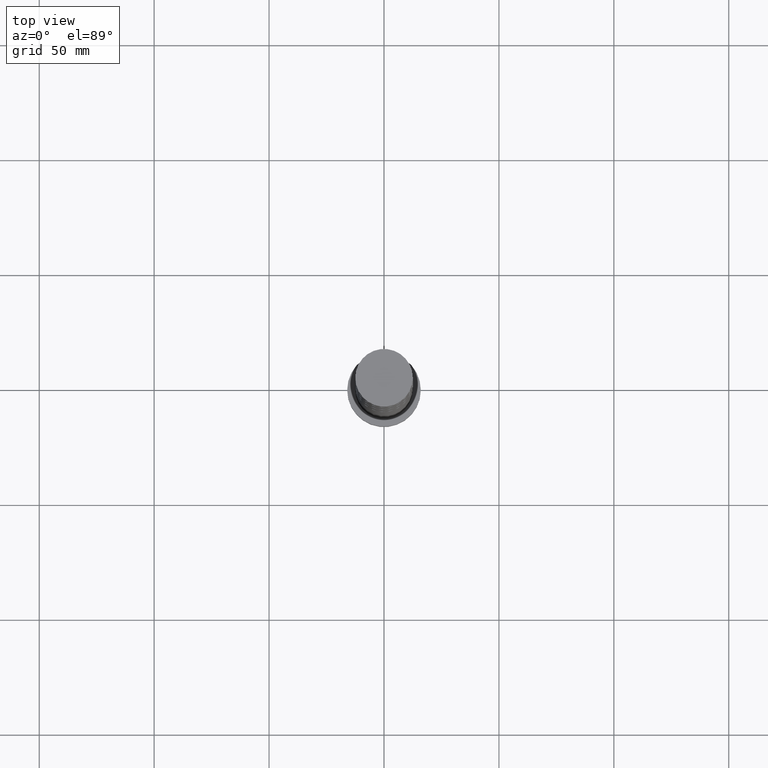
[diagram: clean part render]
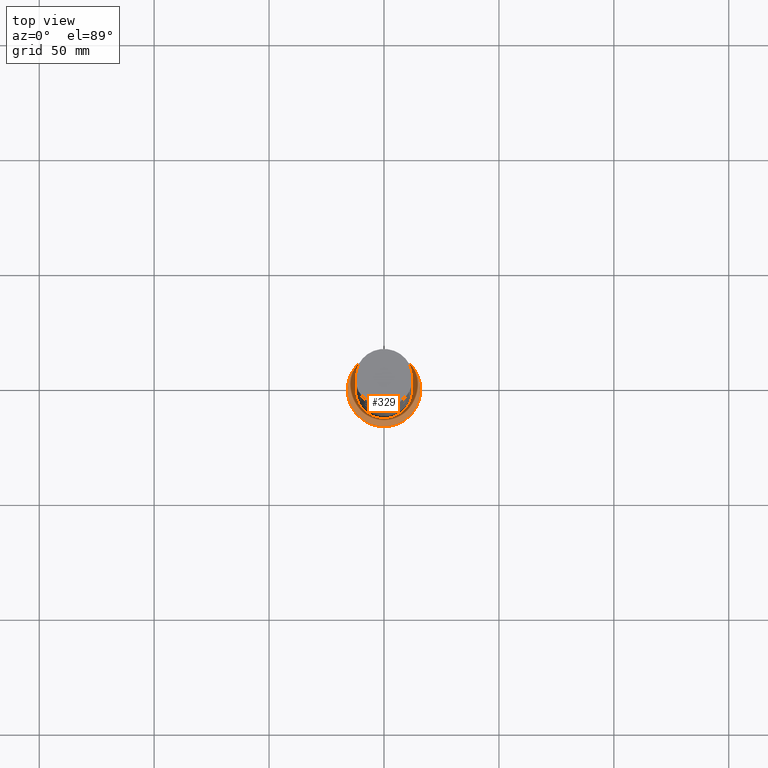
[diagram: same view with one face highlighted and labeled with its STEP entity id]
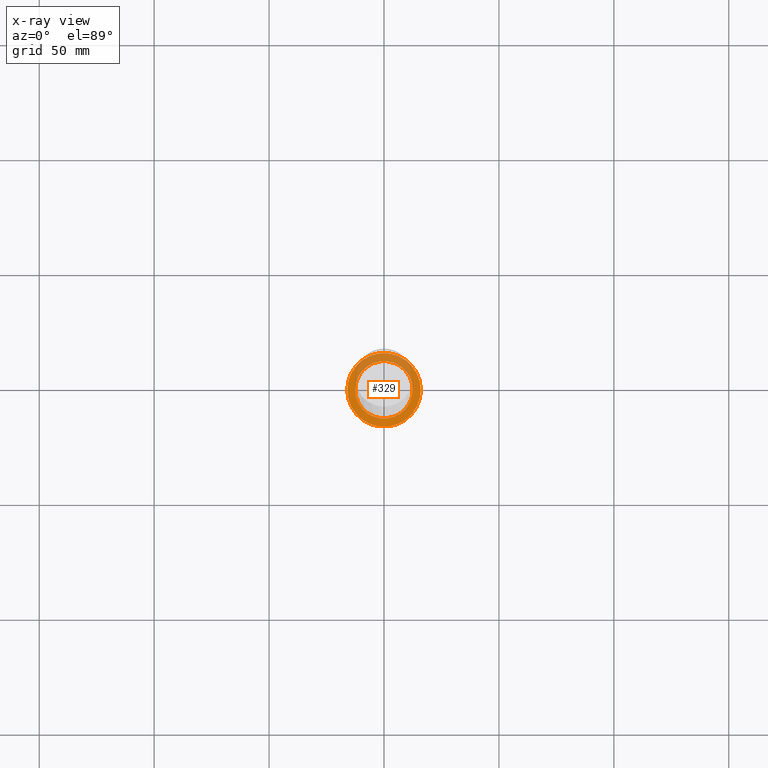
[diagram: x-ray of the same camera — body ghosted, the highlighted face saturated]
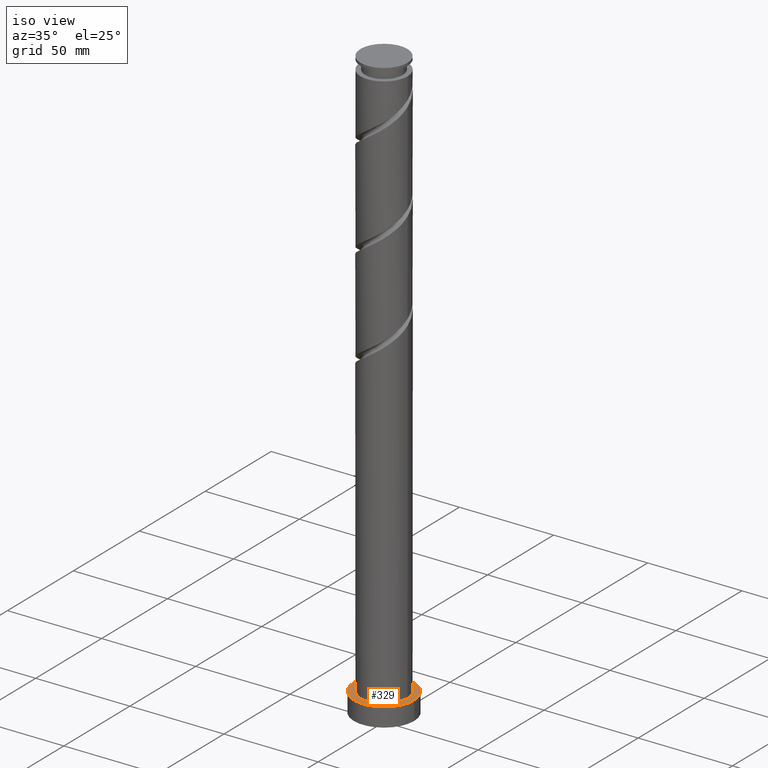
[diagram: same view with one face highlighted and labeled with its STEP entity id]
A machine part, top view. The second image highlights one B-rep face of the part: STEP entity #329.
The next image is the same camera in x-ray: the body ghosted, the highlighted face saturated — about 34% of this face is hidden behind the body in this view.
A second angle (iso view) of the same face is appended — the face is thin or edge-on in the first view.
In plain terms, the highlighted planar face has unit normal (0, 0, 1).
Its self-contained STEP definition (entity closure, byte-faithful):
#45 = EDGE_LOOP ( 'NONE', ( #238, #1579 ) ) ;
#68 = DIRECTION ( 'NONE',  ( 0.000000000000000000, 0.000000000000000000, 1.000000000000000000 ) ) ;
#182 = PLANE ( 'NONE',  #1120 ) ;
#211 = CARTESIAN_POINT ( 'NONE',  ( 0.000000000000000000, 0.000000000000000000, 10.00000000000000000 ) ) ;
#238 = ORIENTED_EDGE ( 'NONE', *, *, #302, .F. ) ;
#302 = EDGE_CURVE ( 'NONE', #990, #762, #340, .T. ) ;
#329 = ADVANCED_FACE ( 'NONE', ( #1070, #1520 ), #182, .T. ) ;
#340 = CIRCLE ( 'NONE', #1024, 12.50000000000000000 ) ;
#350 = DIRECTION ( 'NONE',  ( 1.000000000000000000, 0.000000000000000000, 0.000000000000000000 ) ) ;
#398 = CIRCLE ( 'NONE', #965, 12.50000000000000000 ) ;
#456 = ORIENTED_EDGE ( 'NONE', *, *, #1769, .T. ) ;
#466 = DIRECTION ( 'NONE',  ( 0.000000000000000000, 0.000000000000000000, 1.000000000000000000 ) ) ;
#493 = CARTESIAN_POINT ( 'NONE',  ( 16.00000000000000000, 1.959434878635765131E-15, 10.00000000000000000 ) ) ;
#523 = DIRECTION ( 'NONE',  ( 0.000000000000000000, 0.000000000000000000, 1.000000000000000000 ) ) ;
#564 = CIRCLE ( 'NONE', #1802, 16.00000000000000000 ) ;
#637 = DIRECTION ( 'NONE',  ( 1.000000000000000000, 0.000000000000000000, -0.000000000000000000 ) ) ;
#728 = VERTEX_POINT ( 'NONE', #1501 ) ;
#762 = VERTEX_POINT ( 'NONE', #1641 ) ;
#774 = CARTESIAN_POINT ( 'NONE',  ( 0.000000000000000000, 0.000000000000000000, 10.00000000000000000 ) ) ;
#788 = CARTESIAN_POINT ( 'NONE',  ( 0.000000000000000000, 0.000000000000000000, 10.00000000000000000 ) ) ;
#887 = EDGE_CURVE ( 'NONE', #762, #990, #398, .T. ) ;
#965 = AXIS2_PLACEMENT_3D ( 'NONE', #211, #523, #1575 ) ;
#990 = VERTEX_POINT ( 'NONE', #1131 ) ;
#1024 = AXIS2_PLACEMENT_3D ( 'NONE', #1801, #466, #350 ) ;
#1070 = FACE_BOUND ( 'NONE', #45, .T. ) ;
#1087 = DIRECTION ( 'NONE',  ( 0.000000000000000000, 0.000000000000000000, 1.000000000000000000 ) ) ;
#1120 = AXIS2_PLACEMENT_3D ( 'NONE', #788, #1378, #637 ) ;
#1131 = CARTESIAN_POINT ( 'NONE',  ( -12.50000000000000000, 0.000000000000000000, 10.00000000000000000 ) ) ;
#1154 = AXIS2_PLACEMENT_3D ( 'NONE', #1554, #68, #1420 ) ;
#1206 = DIRECTION ( 'NONE',  ( 1.000000000000000000, 0.000000000000000000, 0.000000000000000000 ) ) ;
#1280 = CIRCLE ( 'NONE', #1154, 16.00000000000000000 ) ;
#1378 = DIRECTION ( 'NONE',  ( 0.000000000000000000, 0.000000000000000000, 1.000000000000000000 ) ) ;
#1387 = EDGE_LOOP ( 'NONE', ( #1831, #456 ) ) ;
#1402 = EDGE_CURVE ( 'NONE', #728, #1765, #1280, .T. ) ;
#1420 = DIRECTION ( 'NONE',  ( 1.000000000000000000, 0.000000000000000000, 0.000000000000000000 ) ) ;
#1501 = CARTESIAN_POINT ( 'NONE',  ( -16.00000000000000000, 0.000000000000000000, 10.00000000000000000 ) ) ;
#1520 = FACE_OUTER_BOUND ( 'NONE', #1387, .T. ) ;
#1554 = CARTESIAN_POINT ( 'NONE',  ( 0.000000000000000000, 0.000000000000000000, 10.00000000000000000 ) ) ;
#1575 = DIRECTION ( 'NONE',  ( 1.000000000000000000, 0.000000000000000000, 0.000000000000000000 ) ) ;
#1579 = ORIENTED_EDGE ( 'NONE', *, *, #887, .F. ) ;
#1641 = CARTESIAN_POINT ( 'NONE',  ( 12.50000000000000000, 1.530808498934191521E-15, 10.00000000000000000 ) ) ;
#1765 = VERTEX_POINT ( 'NONE', #493 ) ;
#1769 = EDGE_CURVE ( 'NONE', #1765, #728, #564, .T. ) ;
#1801 = CARTESIAN_POINT ( 'NONE',  ( 0.000000000000000000, 0.000000000000000000, 10.00000000000000000 ) ) ;
#1802 = AXIS2_PLACEMENT_3D ( 'NONE', #774, #1087, #1206 ) ;
#1831 = ORIENTED_EDGE ( 'NONE', *, *, #1402, .T. ) ;